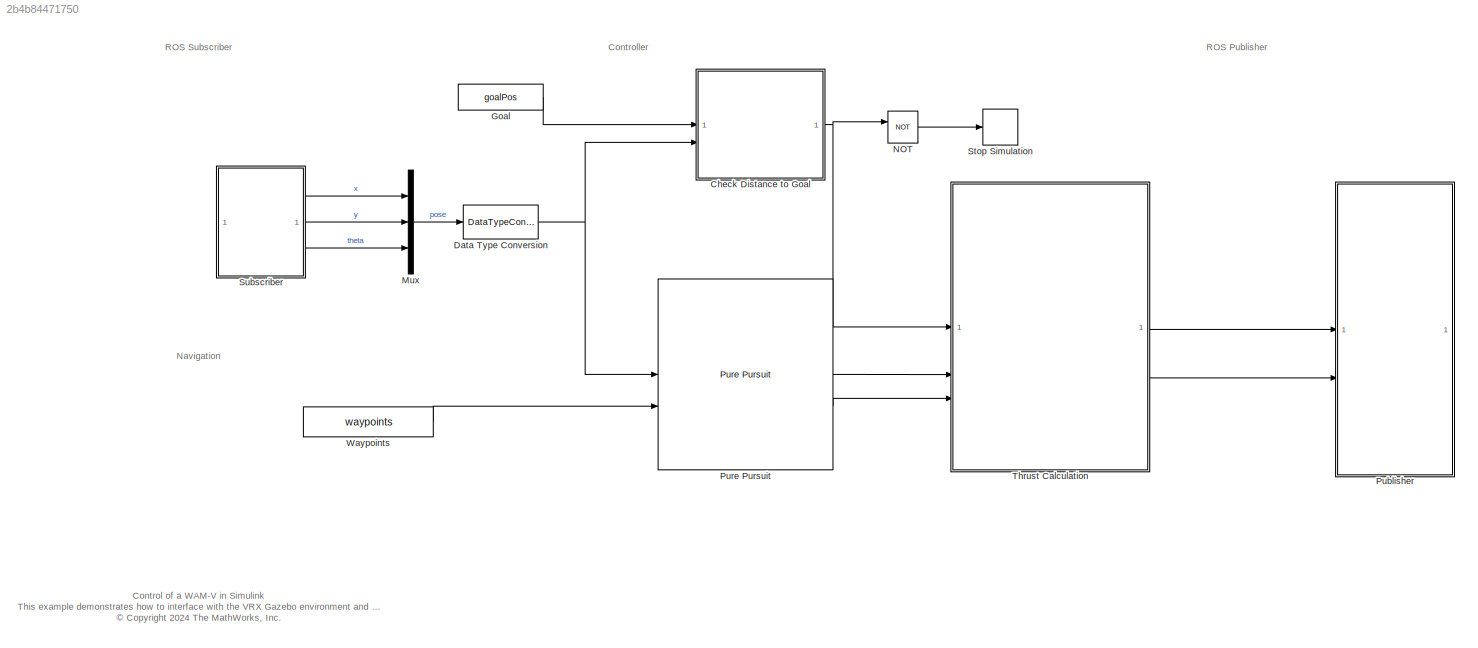
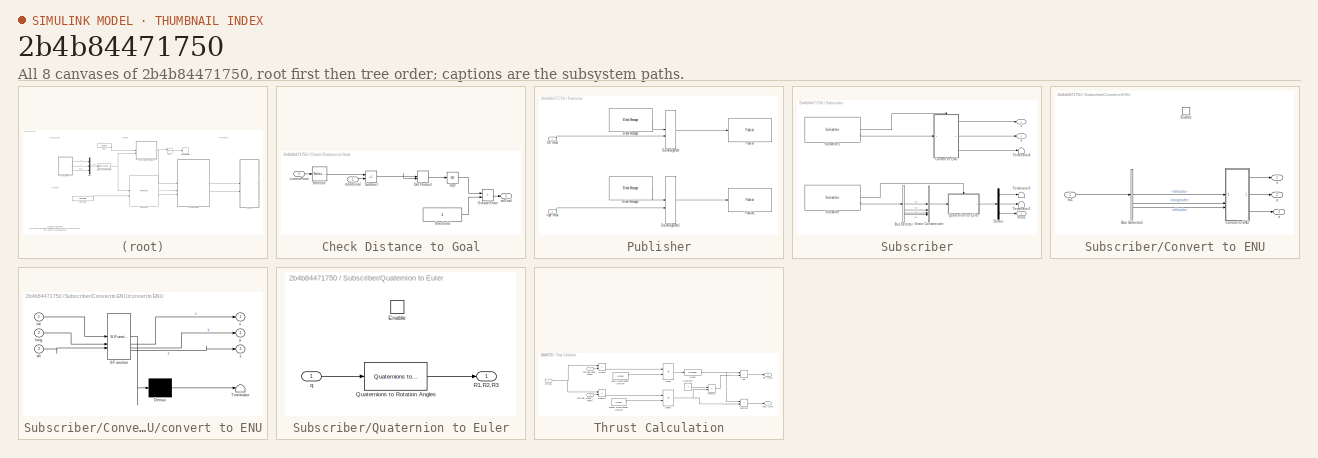
[diagram: thumbnail index - all 8 canvases of the model, root first then tree order]
MODEL slx_2b4b84471750
KIND model
CONFIG AbsTol = auto
CONFIG EnableMultiTasking = off
CONFIG FixedStep = auto
CONFIG MaxStep = auto
CONFIG MinStep = auto
CONFIG RelTol = 1e-3
CONFIG SampleTimeConstraint = Unconstrained
CONFIG SolverName = FixedStepAuto
CONFIG StartTime = 0.0
CONFIG StopTime = Inf
BLOCK [SubSystem] Check Distance to Goal
BLOCK [DotProduct] Check Distance to Goal/Dot Product
  OutDataTypeStr = Inherit: Inherit via internal rule
BLOCK [RelationalOperator] Check Distance to Goal/GreaterThan
  InputSameDT = off
  Operator = >
  OutDataTypeStr = boolean
  RndMeth = Simplest
BLOCK [Selector] Check Distance to Goal/Selector
  IndexOptions = Index vector (dialog)
  Indices = [1 2]
  InputPortWidth = 3
  OutputSizes = 1
BLOCK [Sqrt] Check Distance to Goal/Sqrt
BLOCK [Sum] Check Distance to Goal/Subtract
  IconShape = rectangular
  Inputs = +-
BLOCK [Outport] Check Distance to Goal/atGoal
BLOCK [Inport] Check Distance to Goal/currentPose
  Port = 2
BLOCK [Inport] Check Distance to Goal/robotGoal
BLOCK [Constant] Check Distance to Goal/threshold
BLOCK [DataTypeConversion] Data Type Conversion
  OutDataTypeStr = double
  RndMeth = Floor
  SaturateOnIntegerOverflow = off
BLOCK [Constant] Goal
  Value = goalPos
BLOCK [Mux] Mux
  DisplayOption = bar
  Inputs = 3
BLOCK [Logic] NOT
  AllPortsSameDT = off
  IconShape = distinctive
  Operator = NOT
  OutDataTypeStr = boolean
BLOCK [SubSystem] Publisher
BLOCK [Reference] Publisher/Blank Message  REF=ros2lib/Blank Message  (lib defined in slx_3c1549211f48)
  SourceBlock = ros2lib/Blank Message
  SourceType = ROS2 Blank Message
BLOCK [Reference] Publisher/Blank Message1  REF=ros2lib/Blank Message  (lib defined in slx_3c1549211f48)
  SourceBlock = ros2lib/Blank Message
  SourceType = ROS2 Blank Message
BLOCK [BusAssignment] Publisher/Bus Assignment
  AssignedSignals = data
BLOCK [BusAssignment] Publisher/Bus Assignment1
  AssignedSignals = data
BLOCK [Reference] Publisher/Publish  REF=ros2lib/Publish  (lib defined in slx_3c1549211f48)
  SourceBlock = ros2lib/Publish
  SourceType = ROS2 Publish
BLOCK [Reference] Publisher/Publish1  REF=ros2lib/Publish  (lib defined in slx_3c1549211f48)
  SourceBlock = ros2lib/Publish
  SourceType = ROS2 Publish
BLOCK [Inport] Publisher/left thrust
BLOCK [Inport] Publisher/right thrust
  Port = 2
BLOCK [Reference] Pure Pursuit  REF=robotalgslib/Pure Pursuit
  LibrarySourceBlock = navlib/Control Algorithms/Pure Pursuit
  SourceBlock = robotalgslib/Pure Pursuit
  SourceType = nav.slalgs.internal.PurePursuit
BLOCK [Stop] Stop Simulation
BLOCK [SubSystem] Subscriber
BLOCK [BusSelector] Subscriber/Bus Selector
  OutputSignals = orientation.x,orientation.y,orientation.z,orientation.w
BLOCK [SubSystem] Subscriber/Convert to ENU
BLOCK [BusSelector] Subscriber/Convert to ENU/Bus Selector1
  OutputSignals = latitude,longitude,altitude
BLOCK [EnablePort] Subscriber/Convert to ENU/Enable
BLOCK [Inport] Subscriber/Convert to ENU/In1
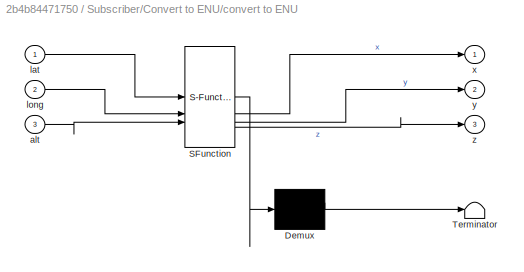
BLOCK [SubSystem] Subscriber/Convert to ENU/convert to ENU
  ErrorFcn = Stateflow.Translate.translate
  PermitHierarchicalResolution = ExplicitOnly
  SFBlockType = MATLAB Function
  TreatAsAtomicUnit = on
BLOCK [Demux] Subscriber/Convert to ENU/convert to ENU/ Demux 
  Outputs = 1
BLOCK [S-Function] Subscriber/Convert to ENU/convert to ENU/ SFunction 
  EnableBusSupport = on
  FunctionName = sf_sfun
  PortCounts = [3 4]
  SFcnIsStateOwnerBlock = off
  SFunctionDeploymentMode = off
  Tag = Stateflow S-Function 2
BLOCK [Terminator] Subscriber/Convert to ENU/convert to ENU/ Terminator 
BLOCK [Inport] Subscriber/Convert to ENU/convert to ENU/alt
  Port = 3
BLOCK [Inport] Subscriber/Convert to ENU/convert to ENU/lat
BLOCK [Inport] Subscriber/Convert to ENU/convert to ENU/long
  Port = 2
BLOCK [Outport] Subscriber/Convert to ENU/convert to ENU/x
BLOCK [Outport] Subscriber/Convert to ENU/convert to ENU/y
  Port = 2
BLOCK [Outport] Subscriber/Convert to ENU/convert to ENU/z
  Port = 3
BLOCK [Outport] Subscriber/Convert to ENU/x
BLOCK [Outport] Subscriber/Convert to ENU/y
  Port = 2
BLOCK [Outport] Subscriber/Convert to ENU/z
  Port = 3
BLOCK [Demux] Subscriber/Demux
  Outputs = 3
BLOCK [SubSystem] Subscriber/Quaternion to Euler
BLOCK [EnablePort] Subscriber/Quaternion to Euler/Enable
BLOCK [Reference] Subscriber/Quaternion to Euler/Quaternions to Rotation Angles  REF=sharedtransform/Quaternions to Rotation Angles
  AttributesFormatString = Rotation Order: %<rotationOrder>
  LibrarySourceBlock = aerolibtransform2/Quaternions to Rotation Angles
  SourceBlock = sharedtransform/Quaternions to Rotation Angles
  SourceType = Quat2Ang
BLOCK [Outport] Subscriber/Quaternion to Euler/R1,R2,R3
BLOCK [Inport] Subscriber/Quaternion to Euler/q
BLOCK [Reference] Subscriber/Subscribe  REF=ros2lib/Subscribe  (lib defined in slx_3c1549211f48)
  SourceBlock = ros2lib/Subscribe
  SourceType = ROS2 Subscribe
BLOCK [Reference] Subscriber/Subscribe1  REF=ros2lib/Subscribe  (lib defined in slx_3c1549211f48)
  SourceBlock = ros2lib/Subscribe
  SourceType = ROS2 Subscribe
BLOCK [Terminator] Subscriber/Terminator2
BLOCK [Terminator] Subscriber/Terminator3
BLOCK [Terminator] Subscriber/Terminator4
BLOCK [Concatenate] Subscriber/Vector Concatenate
  NumInputs = 4
BLOCK [Outport] Subscriber/theta
  Port = 3
BLOCK [Outport] Subscriber/x
BLOCK [Outport] Subscriber/y
  Port = 2
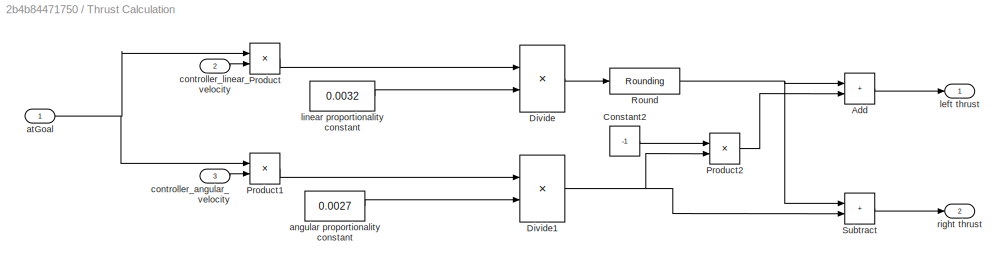
BLOCK [SubSystem] Thrust Calculation
BLOCK [Sum] Thrust Calculation/Add
  IconShape = rectangular
BLOCK [Constant] Thrust Calculation/Constant2
  Value = -1
BLOCK [Product] Thrust Calculation/Divide
  Inputs = */
BLOCK [Product] Thrust Calculation/Divide1
  Inputs = */
BLOCK [Product] Thrust Calculation/Product
BLOCK [Product] Thrust Calculation/Product1
BLOCK [Product] Thrust Calculation/Product2
BLOCK [Rounding] Thrust Calculation/Round
BLOCK [Sum] Thrust Calculation/Subtract
  IconShape = rectangular
BLOCK [Constant] Thrust Calculation/angular proportionality constant
  Value = 0.0027
BLOCK [Inport] Thrust Calculation/atGoal
BLOCK [Inport] Thrust Calculation/controller_angular_velocity
  Port = 3
BLOCK [Inport] Thrust Calculation/controller_linear_velocity
  Port = 2
BLOCK [Outport] Thrust Calculation/left thrust
BLOCK [Constant] Thrust Calculation/linear proportionality constant
  Value = 0.0032
BLOCK [Outport] Thrust Calculation/right thrust
  Port = 2
BLOCK [Constant] Waypoints
  Value = waypoints
ANNOTATION (root): Control of a WAM-V in Simulink This example demonstrates how to interface with the VRX Gazebo environment and develop a Pure Pursuit controller to track a reference target or trajectory for a Wave Adaptive Modular Vessel (WAM-V). If you are unfamilair with ROS, take a look at our tutorial here . <copyright redacted>
ANNOTATION (root): Controller
ANNOTATION (root): Navigation
ANNOTATION (root): ROS Publisher
ANNOTATION (root): ROS Subscriber
LINE Check Distance to Goal/Dot Product:1 -> Check Distance to Goal/Sqrt:1
LINE Check Distance to Goal/GreaterThan:1 -> Check Distance to Goal/atGoal:1
LINE Check Distance to Goal/Selector:1 -> Check Distance to Goal/Subtract:1
LINE Check Distance to Goal/Sqrt:1 -> Check Distance to Goal/GreaterThan:1
NET Check Distance to Goal/Subtract:1 -> Check Distance to Goal/Dot Product:1, Check Distance to Goal/Dot Product:2
LINE Check Distance to Goal/currentPose:1 -> Check Distance to Goal/Selector:1
LINE Check Distance to Goal/robotGoal:1 -> Check Distance to Goal/Subtract:2
LINE Check Distance to Goal/threshold:1 -> Check Distance to Goal/GreaterThan:2
NET Check Distance to Goal:1 -> NOT:1, Thrust Calculation:1
NET Data Type Conversion:1 -> Check Distance to Goal:2, Pure Pursuit:1
LINE Goal:1 -> Check Distance to Goal:1
LINE Mux:1 -> Data Type Conversion:1
LINE NOT:1 -> Stop Simulation:1
LINE Publisher/Blank Message1:1 -> Publisher/Bus Assignment1:1
LINE Publisher/Blank Message:1 -> Publisher/Bus Assignment:1
LINE Publisher/Bus Assignment1:1 -> Publisher/Publish1:1
LINE Publisher/Bus Assignment:1 -> Publisher/Publish:1
LINE Publisher/left thrust:1 -> Publisher/Bus Assignment:2
LINE Publisher/right thrust:1 -> Publisher/Bus Assignment1:2
LINE Pure Pursuit:1 -> Thrust Calculation:2
LINE Pure Pursuit:2 -> Thrust Calculation:3
LINE Subscriber/Bus Selector:1 -> Subscriber/Vector Concatenate:1
LINE Subscriber/Bus Selector:2 -> Subscriber/Vector Concatenate:2
LINE Subscriber/Bus Selector:3 -> Subscriber/Vector Concatenate:3
LINE Subscriber/Bus Selector:4 -> Subscriber/Vector Concatenate:4
LINE Subscriber/Convert to ENU/Bus Selector1:1 -> Subscriber/Convert to ENU/convert to ENU:1
LINE Subscriber/Convert to ENU/Bus Selector1:2 -> Subscriber/Convert to ENU/convert to ENU:2
LINE Subscriber/Convert to ENU/Bus Selector1:3 -> Subscriber/Convert to ENU/convert to ENU:3
LINE Subscriber/Convert to ENU/In1:1 -> Subscriber/Convert to ENU/Bus Selector1:1
LINE Subscriber/Convert to ENU/convert to ENU:1 -> Subscriber/Convert to ENU/x:1
LINE Subscriber/Convert to ENU/convert to ENU:2 -> Subscriber/Convert to ENU/y:1
LINE Subscriber/Convert to ENU/convert to ENU:3 -> Subscriber/Convert to ENU/z:1
LINE Subscriber/Convert to ENU:1 -> Subscriber/x:1
LINE Subscriber/Convert to ENU:2 -> Subscriber/y:1
LINE Subscriber/Convert to ENU:3 -> Subscriber/Terminator4:1
LINE Subscriber/Demux:1 -> Subscriber/Terminator3:1
LINE Subscriber/Demux:2 -> Subscriber/Terminator2:1
LINE Subscriber/Demux:3 -> Subscriber/theta:1
LINE Subscriber/Quaternion to Euler/Quaternions to Rotation Angles:1 -> Subscriber/Quaternion to Euler/R1,R2,R3:1
LINE Subscriber/Quaternion to Euler/q:1 -> Subscriber/Quaternion to Euler/Quaternions to Rotation Angles:1
LINE Subscriber/Quaternion to Euler:1 -> Subscriber/Demux:1
LINE Subscriber/Subscribe1:1 -> Subscriber/Convert to ENU:enable
LINE Subscriber/Subscribe1:2 -> Subscriber/Convert to ENU:1
LINE Subscriber/Subscribe:1 -> Subscriber/Quaternion to Euler:enable
LINE Subscriber/Subscribe:2 -> Subscriber/Bus Selector:1
LINE Subscriber/Vector Concatenate:1 -> Subscriber/Quaternion to Euler:1
LINE Subscriber:1 -> Mux:1
LINE Subscriber:2 -> Mux:2
LINE Subscriber:3 -> Mux:3
LINE Thrust Calculation/Add:1 -> Thrust Calculation/left thrust:1
LINE Thrust Calculation/Constant2:1 -> Thrust Calculation/Product2:1
NET Thrust Calculation/Divide1:1 -> Thrust Calculation/Product2:2, Thrust Calculation/Subtract:2
LINE Thrust Calculation/Divide:1 -> Thrust Calculation/Round:1
LINE Thrust Calculation/Product1:1 -> Thrust Calculation/Divide1:1
LINE Thrust Calculation/Product2:1 -> Thrust Calculation/Add:2
LINE Thrust Calculation/Product:1 -> Thrust Calculation/Divide:1
NET Thrust Calculation/Round:1 -> Thrust Calculation/Add:1, Thrust Calculation/Subtract:1
LINE Thrust Calculation/Subtract:1 -> Thrust Calculation/right thrust:1
LINE Thrust Calculation/angular proportionality constant:1 -> Thrust Calculation/Divide1:2
NET Thrust Calculation/atGoal:1 -> Thrust Calculation/Product1:1, Thrust Calculation/Product:1
LINE Thrust Calculation/controller_angular_velocity:1 -> Thrust Calculation/Product1:2
LINE Thrust Calculation/controller_linear_velocity:1 -> Thrust Calculation/Product:2
LINE Thrust Calculation/linear proportionality constant:1 -> Thrust Calculation/Divide:2
LINE Thrust Calculation:1 -> Publisher:1
LINE Thrust Calculation:2 -> Publisher:2
LINE Waypoints:1 -> Pure Pursuit:2
note: NET lines group one-source signal fan-out (src -> all destinations, sorted); 1:1 wires keep LINE
CHART Subscriber/Convert to ENU/convert to ENU states=1 transitions=1
  STATE_LABEL 'eML_blk_kernel()'
  STATE_LABEL 'SCRIPT:\nfunction [x, y, z] = gps2enu(lat, long, alt)\n\nwgs84 = wgs84Ellipsoid;\nlat0 = -33.724223;\nlong0 = 150.679736;\nalt0 = 0;\n\n[x, y, z] = geodetic2enu(lat, long, alt, lat0, long0, alt0, wgs84);\n'
CHART  states=0 transitions=0
